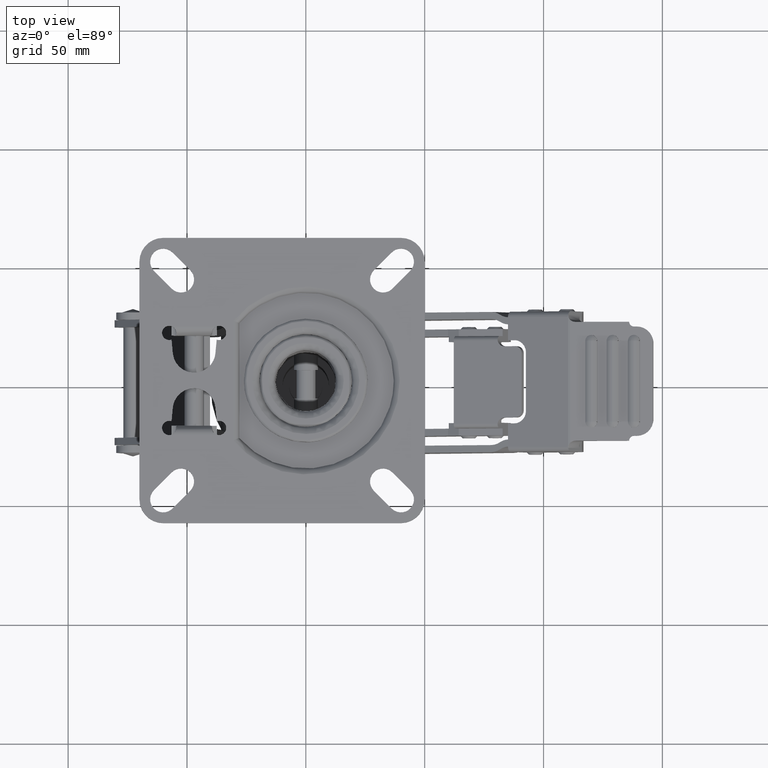
[diagram: clean part render]
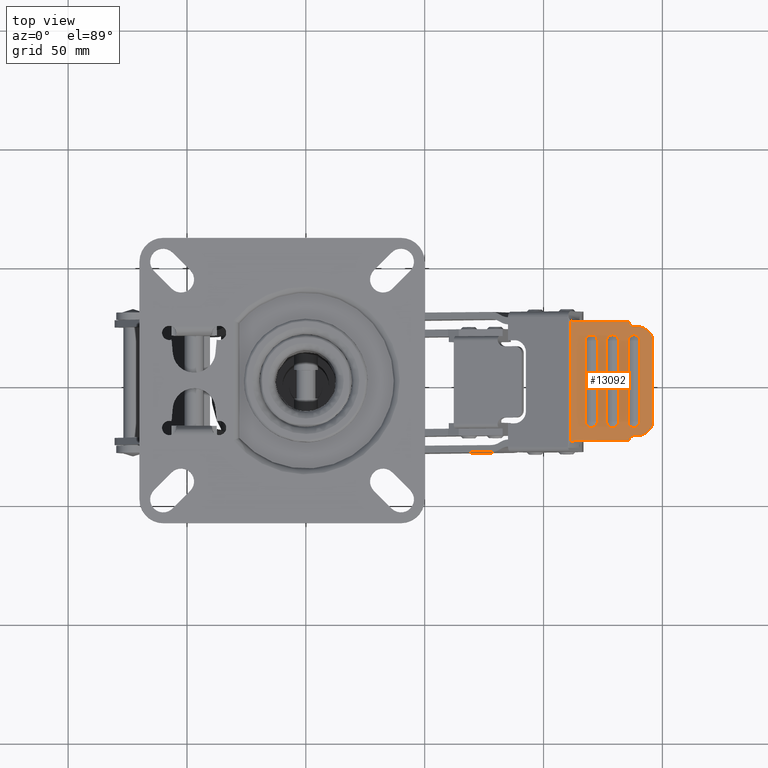
[diagram: same view with one face highlighted and labeled with its STEP entity id]
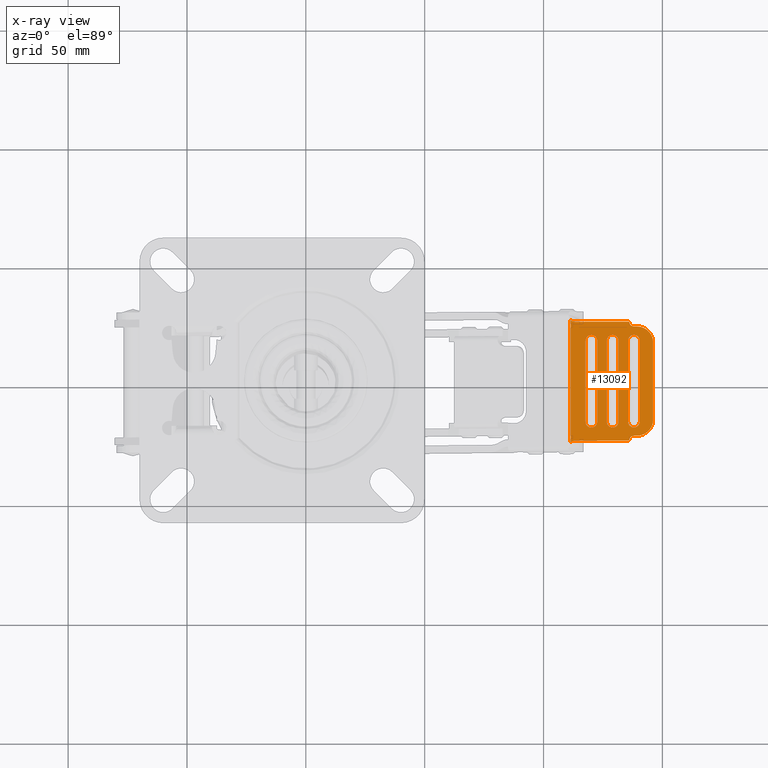
[diagram: x-ray of the same camera — body ghosted, the highlighted face saturated]
A machine part, top view. The second image highlights one B-rep face of the part: STEP entity #13092.
The next image is the same camera in x-ray: the body ghosted, the highlighted face saturated — about 0% of this face is hidden behind the body in this view.
In plain terms, the highlighted face is a freeform B-spline surface patch.
Its self-contained STEP definition (entity closure, byte-faithful):
#7690=CARTESIAN_POINT('',(136.010901999999790,-25.0,-16.472462096093999));
#7691=VERTEX_POINT('',#7690);
#7743=CARTESIAN_POINT('',(138.010901999999790,-23.0,-16.277252468842800));
#7744=VERTEX_POINT('',#7743);
#7750=CARTESIAN_POINT('',(136.010901999999790,-25.0,-16.472462096093992));
#7751=CARTESIAN_POINT('',(136.010901999999790,-23.000000000000004,-16.472462096093995));
#7752=CARTESIAN_POINT('',(138.010901999999790,-23.0,-16.277252468842800));
#7760=(BOUNDED_CURVE()B_SPLINE_CURVE(2,(#7750,#7751,#7752),.UNSPECIFIED.,.F.,.U.)CURVE()GEOMETRIC_REPRESENTATION_ITEM()QUASI_UNIFORM_CURVE()RATIONAL_B_SPLINE_CURVE((1.0,0.707106781186547,1.0))REPRESENTATION_ITEM(''));
#7761=EDGE_CURVE('',#7691,#7744,#7760,.T.);
#7779=CARTESIAN_POINT('',(139.207310000000010,-23.0,-16.160477288982651));
#7780=VERTEX_POINT('',#7779);
#7786=CARTESIAN_POINT('',(138.010901999999790,-23.0,-16.277252468842800));
#7787=CARTESIAN_POINT('',(139.207310000000010,-23.0,-16.160477288982651));
#7788=QUASI_UNIFORM_CURVE('',1,(#7786,#7787),.UNSPECIFIED.,.F.,.U.);
#7789=EDGE_CURVE('',#7744,#7780,#7788,.T.);
#7808=CARTESIAN_POINT('',(145.983887144168390,-17.754423611654449,-15.499050739806600));
#7809=VERTEX_POINT('',#7808);
#7810=CARTESIAN_POINT('',(145.983887144168700,-17.754423611654449,-15.499050739806551));
#7811=CARTESIAN_POINT('',(144.625832350921120,-22.999999999999996,-15.631603424794832));
#7812=CARTESIAN_POINT('',(139.207310000000010,-23.0,-16.160477288982602));
#7820=(BOUNDED_CURVE()B_SPLINE_CURVE(2,(#7810,#7811,#7812),.UNSPECIFIED.,.F.,.U.)CURVE()GEOMETRIC_REPRESENTATION_ITEM()QUASI_UNIFORM_CURVE()RATIONAL_B_SPLINE_CURVE((1.0,0.790769228195580,1.0))REPRESENTATION_ITEM(''));
#7821=EDGE_CURVE('',#7809,#7780,#7820,.T.);
#7864=CARTESIAN_POINT('',(139.207310000000010,23.0,-16.160477288982602));
#7865=VERTEX_POINT('',#7864);
#7878=CARTESIAN_POINT('',(138.010901999999790,23.0,-16.277252468842750));
#7879=VERTEX_POINT('',#7878);
#7885=CARTESIAN_POINT('',(139.207310000000010,23.0,-16.160477288982602));
#7886=CARTESIAN_POINT('',(138.010901999999790,23.0,-16.277252468842750));
#7887=QUASI_UNIFORM_CURVE('',1,(#7885,#7886),.UNSPECIFIED.,.F.,.U.);
#7888=EDGE_CURVE('',#7865,#7879,#7887,.T.);
#7907=CARTESIAN_POINT('',(145.983887144168390,17.754423611655000,-15.499050739806600));
#7908=VERTEX_POINT('',#7907);
#7909=CARTESIAN_POINT('',(139.207310000000010,23.0,-16.160477288982602));
#7910=CARTESIAN_POINT('',(144.625832350920090,23.000000000000007,-15.631603424794930));
#7911=CARTESIAN_POINT('',(145.983887144168390,17.754423611655000,-15.499050739806600));
#7919=(BOUNDED_CURVE()B_SPLINE_CURVE(2,(#7909,#7910,#7911),.UNSPECIFIED.,.F.,.U.)CURVE()GEOMETRIC_REPRESENTATION_ITEM()QUASI_UNIFORM_CURVE()RATIONAL_B_SPLINE_CURVE((1.0,0.790769228195632,1.0))REPRESENTATION_ITEM(''));
#7920=EDGE_CURVE('',#7865,#7908,#7919,.T.);
#8011=CARTESIAN_POINT('',(136.010901999999790,25.0,-16.472462096093999));
#8012=VERTEX_POINT('',#8011);
#8018=CARTESIAN_POINT('',(138.010901999999790,23.0,-16.277252468842800));
#8019=CARTESIAN_POINT('',(137.182474875253630,23.0,-16.358110943956042));
#8020=CARTESIAN_POINT('',(136.596688437626710,23.585786437626901,-16.415286520025010));
#8021=CARTESIAN_POINT('',(136.010901999999850,24.171572875253808,-16.472462096093992));
#8022=CARTESIAN_POINT('',(136.010901999999790,25.0,-16.472462096093992));
#8030=(BOUNDED_CURVE()B_SPLINE_CURVE(2,(#8018,#8019,#8020,#8021,#8022),.UNSPECIFIED.,.F.,.U.)B_SPLINE_CURVE_WITH_KNOTS((3,2,3),(0.0,0.500000000000000,1.0),.UNSPECIFIED.)CURVE()GEOMETRIC_REPRESENTATION_ITEM()RATIONAL_B_SPLINE_CURVE((1.0,0.923879532511294,1.0,0.923879532511294,1.0))REPRESENTATION_ITEM(''));
#8031=EDGE_CURVE('',#7879,#8012,#8030,.T.);
#8499=CARTESIAN_POINT('',(138.052562302452200,19.487663391086102,-16.273186222786361));
#8500=VERTEX_POINT('',#8499);
#8501=CARTESIAN_POINT('',(140.510086728293000,16.926503163803250,-16.033320009213149));
#8502=VERTEX_POINT('',#8501);
#8503=CARTESIAN_POINT('',(138.052562302452200,19.487663391086102,-16.273186222786361));
#8504=CARTESIAN_POINT('',(138.442557885283490,19.483579292641870,-16.235120776608799));
#8505=CARTESIAN_POINT('',(138.994123872563590,19.342611239104510,-16.181285281217210));
#8506=CARTESIAN_POINT('',(139.683580616891190,18.887587872285749,-16.113990984182269));
#8507=CARTESIAN_POINT('',(140.099305043915710,18.420800957438111,-16.073414278961550));
#8508=CARTESIAN_POINT('',(140.437072109185690,17.732348629066589,-16.040446587504920));
#8509=CARTESIAN_POINT('',(140.517829343752200,17.235668685510280,-16.032564292674870));
#8510=CARTESIAN_POINT('',(140.510086728293000,16.926503163803250,-16.033320009213149));
#8511=B_SPLINE_CURVE_WITH_KNOTS('',3,(#8503,#8504,#8505,#8506,#8507,#8508,#8509,#8510),.UNSPECIFIED.,.F.,.U.,(4,1,1,1,1,4),(0.000000564917675,1.175101842134310,1.669906509900008,2.473870782001163,3.030508140870134,3.958207701490773),.UNSPECIFIED.);
#8512=EDGE_CURVE('',#8500,#8502,#8511,.T.);
#8514=CARTESIAN_POINT('',(135.533637261580990,16.987428999999899,-16.519045431934501));
#8515=VERTEX_POINT('',#8514);
#8516=CARTESIAN_POINT('',(135.533637261580990,16.987428999999899,-16.519045431934501));
#8517=CARTESIAN_POINT('',(135.533352211769310,17.296704456674519,-16.519073254168951));
#8518=CARTESIAN_POINT('',(135.626215309124800,17.791243071524669,-16.510009368859809));
#8519=CARTESIAN_POINT('',(135.942302905465790,18.397597365426741,-16.479157697930731));
#8520=CARTESIAN_POINT('',(136.396875410409510,18.935163956194231,-16.434789233306990));
#8521=CARTESIAN_POINT('',(137.107432269946290,19.379211292414411,-16.365435463461800));
#8522=CARTESIAN_POINT('',(137.744800805828790,19.491681276145489,-16.303225226305759));
#8523=CARTESIAN_POINT('',(138.052562302452200,19.487663391086102,-16.273186222786361));
#8524=B_SPLINE_CURVE_WITH_KNOTS('',3,(#8516,#8517,#8518,#8519,#8520,#8521,#8522,#8523),.UNSPECIFIED.,.F.,.U.,(4,1,1,1,1,4),(0.000000564945659,0.927704733621519,1.484344857681237,2.040879204135153,3.030523194228511,3.958227362906388),.UNSPECIFIED.);
#8525=EDGE_CURVE('',#8515,#8500,#8524,.T.);
#8646=CARTESIAN_POINT('',(129.094838153745290,19.487663391794769,-17.147503218830401));
#8647=VERTEX_POINT('',#8646);
#8648=CARTESIAN_POINT('',(131.552362583051010,16.926503169149601,-16.907637004927700));
#8649=VERTEX_POINT('',#8648);
#8650=CARTESIAN_POINT('',(129.094838153745290,19.487663391794769,-17.147503218830401));
#8651=CARTESIAN_POINT('',(129.484787868854310,19.483574473774532,-17.109442249564250));
#8652=CARTESIAN_POINT('',(130.118276216857200,19.321786795848261,-17.047610737423980));
#8653=CARTESIAN_POINT('',(130.788374396891810,18.829984932902001,-16.982205929451069));
#8654=CARTESIAN_POINT('',(131.230142323345690,18.281853334621040,-16.939087253323681));
#8655=CARTESIAN_POINT('',(131.502496316939610,17.649473849846942,-16.912504192538410));
#8656=CARTESIAN_POINT('',(131.557927329025400,17.153196706364881,-16.907093858934250));
#8657=CARTESIAN_POINT('',(131.552362583051010,16.926503169149601,-16.907637004927700));
#8658=B_SPLINE_CURVE_WITH_KNOTS('',3,(#8650,#8651,#8652,#8653,#8654,#8655,#8656,#8657),.UNSPECIFIED.,.F.,.U.,(4,1,1,1,1,4),(0.000000564923513,1.175101841658278,1.917339198239790,2.473870780995842,3.277902119914029,3.958207699878586),.UNSPECIFIED.);
#8659=EDGE_CURVE('',#8647,#8649,#8658,.T.);
#8661=CARTESIAN_POINT('',(126.575913114862200,16.987428999999899,-17.393362427782250));
#8662=VERTEX_POINT('',#8661);
#8663=CARTESIAN_POINT('',(126.575913114862200,16.987428999999899,-17.393362427782250));
#8664=CARTESIAN_POINT('',(126.575229112326000,17.379271111504281,-17.393429189722749));
#8665=CARTESIAN_POINT('',(126.718637502320800,17.976435414363060,-17.379431840545671));
#8666=CARTESIAN_POINT('',(127.146843244778790,18.613422512948080,-17.337636898860762));
#8667=CARTESIAN_POINT('',(127.627408837616100,19.067712367635259,-17.290731383738059));
#8668=CARTESIAN_POINT('',(128.273119550296600,19.407431311384059,-17.227706909971410));
#8669=CARTESIAN_POINT('',(128.828124425481290,19.491055623970269,-17.173535762569092));
#8670=CARTESIAN_POINT('',(129.094838153745290,19.487663391794769,-17.147503218830401));
#8671=B_SPLINE_CURVE_WITH_KNOTS('',3,(#8663,#8664,#8665,#8666,#8667,#8668,#8669,#8670),.UNSPECIFIED.,.F.,.U.,(4,1,1,1,1,4),(0.000000564950851,1.175107678803641,1.793598329869497,2.288313121700720,3.154221076973745,3.958227361294228),.UNSPECIFIED.);
#8672=EDGE_CURVE('',#8662,#8647,#8671,.T.);
#8792=CARTESIAN_POINT('',(120.137114005038300,19.487663392503439,-18.021820214874431));
#8793=VERTEX_POINT('',#8792);
#8794=CARTESIAN_POINT('',(122.594638437808000,16.926503174496599,-17.781954000633601));
#8795=VERTEX_POINT('',#8794);
#8796=CARTESIAN_POINT('',(120.137114005038300,19.487663392503439,-18.021820214874431));
#8797=CARTESIAN_POINT('',(120.485986192563400,19.483873573907680,-17.987768610032390));
#8798=CARTESIAN_POINT('',(121.038067649222500,19.357583915267650,-17.933882802349700));
#8799=CARTESIAN_POINT('',(121.652513098079000,18.973510068722749,-17.873909968831342));
#8800=CARTESIAN_POINT('',(122.092758537905790,18.536941173282671,-17.830939894727521));
#8801=CARTESIAN_POINT('',(122.490418021685000,17.877328957238550,-17.792126414926589));
#8802=CARTESIAN_POINT('',(122.603609207972000,17.276924793050100,-17.781078410284049));
#8803=CARTESIAN_POINT('',(122.594638437808000,16.926503174496599,-17.781954000633601));
#8804=B_SPLINE_CURVE_WITH_KNOTS('',3,(#8796,#8797,#8798,#8799,#8800,#8801,#8802,#8803),.UNSPECIFIED.,.F.,.U.,(4,1,1,1,1,4),(0.000000564907121,1.051404571719722,1.669906508532635,2.164618843429540,2.906803691452613,3.958207698266045),.UNSPECIFIED.);
#8805=EDGE_CURVE('',#8793,#8795,#8804,.T.);
#8807=CARTESIAN_POINT('',(117.618188968143600,16.987428999999899,-18.267679423630149));
#8808=VERTEX_POINT('',#8807);
#8809=CARTESIAN_POINT('',(117.618188968143600,16.987428999999899,-18.267679423630149));
#8810=CARTESIAN_POINT('',(117.618089001990300,17.255416557029751,-18.267689180808279));
#8811=CARTESIAN_POINT('',(117.714597753428510,17.853308410267459,-18.258269462111969));
#8812=CARTESIAN_POINT('',(118.098642287560390,18.528486963423049,-18.220784866935560));
#8813=CARTESIAN_POINT('',(118.609728910941500,19.010743715664969,-18.170900352315350));
#8814=CARTESIAN_POINT('',(119.233269948014000,19.379688051012920,-18.110039745605459));
#8815=CARTESIAN_POINT('',(119.788249972077490,19.492415615523470,-18.055871023791561));
#8816=CARTESIAN_POINT('',(120.137114005038300,19.487663392503439,-18.021820214874431));
#8817=B_SPLINE_CURVE_WITH_KNOTS('',3,(#8809,#8810,#8811,#8812,#8813,#8814,#8815,#8816),.UNSPECIFIED.,.F.,.U.,(4,1,1,1,1,4),(0.000000564933216,0.804006848927419,1.793598329132230,2.288313120764774,2.906818130231264,3.958227359681584),.UNSPECIFIED.);
#8818=EDGE_CURVE('',#8808,#8793,#8817,.T.);
#9029=CARTESIAN_POINT('',(111.369278475967410,25.705984580092998,-18.877603167589250));
#9030=VERTEX_POINT('',#9029);
#9038=CARTESIAN_POINT('',(113.444490027692000,25.0,-18.675052530849499));
#9039=VERTEX_POINT('',#9038);
#9040=CARTESIAN_POINT('',(111.369278475967410,25.705984580093080,-18.877603167589260));
#9041=CARTESIAN_POINT('',(112.268514107454990,25.0,-18.789833441372416));
#9042=CARTESIAN_POINT('',(113.444490027692000,25.0,-18.675052530849499));
#9050=(BOUNDED_CURVE()B_SPLINE_CURVE(2,(#9040,#9041,#9042),.UNSPECIFIED.,.F.,.U.)CURVE()GEOMETRIC_REPRESENTATION_ITEM()QUASI_UNIFORM_CURVE()RATIONAL_B_SPLINE_CURVE((1.0,0.939327367491130,1.0))REPRESENTATION_ITEM(''));
#9051=EDGE_CURVE('',#9030,#9039,#9050,.T.);
#9269=CARTESIAN_POINT('',(113.444490027692000,25.0,-18.675052530849499));
#9270=CARTESIAN_POINT('',(136.010901999999790,25.0,-16.472462096093999));
#9271=QUASI_UNIFORM_CURVE('',1,(#9269,#9270),.UNSPECIFIED.,.F.,.U.);
#9272=EDGE_CURVE('',#9039,#8012,#9271,.T.);
#10606=CARTESIAN_POINT('',(140.510086728293000,-16.926503163803250,-16.033320009213149));
#10607=VERTEX_POINT('',#10606);
#10608=CARTESIAN_POINT('',(140.510086728293000,16.926503163803250,-16.033320009213149));
#10609=CARTESIAN_POINT('',(140.510086728293000,-16.926503163803250,-16.033320009213149));
#10610=QUASI_UNIFORM_CURVE('',1,(#10608,#10609),.UNSPECIFIED.,.F.,.U.);
#10611=EDGE_CURVE('',#8502,#10607,#10610,.T.);
#10636=CARTESIAN_POINT('',(135.533637261580990,-16.987428999999899,-16.519045431934501));
#10637=VERTEX_POINT('',#10636);
#10638=CARTESIAN_POINT('',(135.533637261580990,-16.987428999999899,-16.519045431934501));
#10639=CARTESIAN_POINT('',(135.533637261580990,16.987428999999899,-16.519045431934501));
#10640=QUASI_UNIFORM_CURVE('',1,(#10638,#10639),.UNSPECIFIED.,.F.,.U.);
#10641=EDGE_CURVE('',#10637,#8515,#10640,.T.);
#10733=CARTESIAN_POINT('',(131.552362583051010,-16.926503169149601,-16.907637004927700));
#10734=VERTEX_POINT('',#10733);
#10735=CARTESIAN_POINT('',(131.552362583051010,16.926503169149601,-16.907637004927700));
#10736=CARTESIAN_POINT('',(131.552362583051010,-16.926503169149601,-16.907637004927700));
#10737=QUASI_UNIFORM_CURVE('',1,(#10735,#10736),.UNSPECIFIED.,.F.,.U.);
#10738=EDGE_CURVE('',#8649,#10734,#10737,.T.);
#10763=CARTESIAN_POINT('',(126.575913114862200,-16.987428999999899,-17.393362427782250));
#10764=VERTEX_POINT('',#10763);
#10765=CARTESIAN_POINT('',(126.575913114862200,-16.987428999999899,-17.393362427782250));
#10766=CARTESIAN_POINT('',(126.575913114862200,16.987428999999899,-17.393362427782250));
#10767=QUASI_UNIFORM_CURVE('',1,(#10765,#10766),.UNSPECIFIED.,.F.,.U.);
#10768=EDGE_CURVE('',#10764,#8662,#10767,.T.);
#10857=CARTESIAN_POINT('',(138.052562302452200,-19.487663391086102,-16.273186222786361));
#10858=VERTEX_POINT('',#10857);
#10859=CARTESIAN_POINT('',(135.533637261580990,-16.987428999999899,-16.519045431934501));
#10860=CARTESIAN_POINT('',(135.533352211769310,-17.296704456674519,-16.519073254168951));
#10861=CARTESIAN_POINT('',(135.626215309124800,-17.791243071524669,-16.510009368859809));
#10862=CARTESIAN_POINT('',(135.942302905465790,-18.397597365426741,-16.479157697930731));
#10863=CARTESIAN_POINT('',(136.396875410409510,-18.935163956194231,-16.434789233306990));
#10864=CARTESIAN_POINT('',(137.107432269946290,-19.379211292414411,-16.365435463461800));
#10865=CARTESIAN_POINT('',(137.744800805828790,-19.491681276145489,-16.303225226305759));
#10866=CARTESIAN_POINT('',(138.052562302452200,-19.487663391086102,-16.273186222786361));
#10867=B_SPLINE_CURVE_WITH_KNOTS('',3,(#10859,#10860,#10861,#10862,#10863,#10864,#10865,#10866),.UNSPECIFIED.,.F.,.U.,(4,1,1,1,1,4),(0.000000564945659,0.927704733621519,1.484344857681237,2.040879204135153,3.030523194228511,3.958227362906388),.UNSPECIFIED.);
#10868=EDGE_CURVE('',#10637,#10858,#10867,.T.);
#10870=CARTESIAN_POINT('',(138.052562302452200,-19.487663391086102,-16.273186222786361));
#10871=CARTESIAN_POINT('',(138.442557885283490,-19.483579292641870,-16.235120776608799));
#10872=CARTESIAN_POINT('',(138.994123872563590,-19.342611239104510,-16.181285281217210));
#10873=CARTESIAN_POINT('',(139.683580616891190,-18.887587872285749,-16.113990984182269));
#10874=CARTESIAN_POINT('',(140.099305043915710,-18.420800957438111,-16.073414278961550));
#10875=CARTESIAN_POINT('',(140.437072109185690,-17.732348629066589,-16.040446587504920));
#10876=CARTESIAN_POINT('',(140.517829343752200,-17.235668685510280,-16.032564292674870));
#10877=CARTESIAN_POINT('',(140.510086728293000,-16.926503163803250,-16.033320009213149));
#10878=B_SPLINE_CURVE_WITH_KNOTS('',3,(#10870,#10871,#10872,#10873,#10874,#10875,#10876,#10877),.UNSPECIFIED.,.F.,.U.,(4,1,1,1,1,4),(0.000000564917675,1.175101842134310,1.669906509900008,2.473870782001163,3.030508140870134,3.958207701490773),.UNSPECIFIED.);
#10879=EDGE_CURVE('',#10858,#10607,#10878,.T.);
#10965=CARTESIAN_POINT('',(129.094838153745290,-19.487663391794769,-17.147503218830401));
#10966=VERTEX_POINT('',#10965);
#10967=CARTESIAN_POINT('',(126.575913114862200,-16.987428999999899,-17.393362427782250));
#10968=CARTESIAN_POINT('',(126.575229112326000,-17.379271111504281,-17.393429189722749));
#10969=CARTESIAN_POINT('',(126.718637502320800,-17.976435414363060,-17.379431840545671));
#10970=CARTESIAN_POINT('',(127.146843244778790,-18.613422512948080,-17.337636898860762));
#10971=CARTESIAN_POINT('',(127.627408837616100,-19.067712367635259,-17.290731383738059));
#10972=CARTESIAN_POINT('',(128.273119550296600,-19.407431311384059,-17.227706909971410));
#10973=CARTESIAN_POINT('',(128.828124425481290,-19.491055623970269,-17.173535762569092));
#10974=CARTESIAN_POINT('',(129.094838153745290,-19.487663391794769,-17.147503218830401));
#10975=B_SPLINE_CURVE_WITH_KNOTS('',3,(#10967,#10968,#10969,#10970,#10971,#10972,#10973,#10974),.UNSPECIFIED.,.F.,.U.,(4,1,1,1,1,4),(0.000000564950851,1.175107678803641,1.793598329869497,2.288313121700720,3.154221076973745,3.958227361294228),.UNSPECIFIED.);
#10976=EDGE_CURVE('',#10764,#10966,#10975,.T.);
#10978=CARTESIAN_POINT('',(129.094838153745290,-19.487663391794769,-17.147503218830401));
#10979=CARTESIAN_POINT('',(129.484787868854310,-19.483574473774532,-17.109442249564250));
#10980=CARTESIAN_POINT('',(130.118276216857200,-19.321786795848261,-17.047610737423980));
#10981=CARTESIAN_POINT('',(130.788374396891810,-18.829984932902001,-16.982205929451069));
#10982=CARTESIAN_POINT('',(131.230142323345690,-18.281853334621040,-16.939087253323681));
#10983=CARTESIAN_POINT('',(131.502496316939610,-17.649473849846942,-16.912504192538410));
#10984=CARTESIAN_POINT('',(131.557927329025400,-17.153196706364881,-16.907093858934250));
#10985=CARTESIAN_POINT('',(131.552362583051010,-16.926503169149601,-16.907637004927700));
#10986=B_SPLINE_CURVE_WITH_KNOTS('',3,(#10978,#10979,#10980,#10981,#10982,#10983,#10984,#10985),.UNSPECIFIED.,.F.,.U.,(4,1,1,1,1,4),(0.000000564923513,1.175101841658278,1.917339198239790,2.473870780995842,3.277902119914029,3.958207699878586),.UNSPECIFIED.);
#10987=EDGE_CURVE('',#10966,#10734,#10986,.T.);
#11075=CARTESIAN_POINT('',(122.594638437808000,-16.926503174496599,-17.781954000633601));
#11076=VERTEX_POINT('',#11075);
#11084=CARTESIAN_POINT('',(122.594638437808000,16.926503174496599,-17.781954000633601));
#11085=CARTESIAN_POINT('',(122.594638437808000,-16.926503174496599,-17.781954000633601));
#11086=QUASI_UNIFORM_CURVE('',1,(#11084,#11085),.UNSPECIFIED.,.F.,.U.);
#11087=EDGE_CURVE('',#8795,#11076,#11086,.T.);
#11105=CARTESIAN_POINT('',(117.618188968143600,-16.987428999999899,-18.267679423630149));
#11106=VERTEX_POINT('',#11105);
#11107=CARTESIAN_POINT('',(117.618188968143600,-16.987428999999899,-18.267679423630149));
#11108=CARTESIAN_POINT('',(117.618188968143600,16.987428999999899,-18.267679423630149));
#11109=QUASI_UNIFORM_CURVE('',1,(#11107,#11108),.UNSPECIFIED.,.F.,.U.);
#11110=EDGE_CURVE('',#11106,#8808,#11109,.T.);
#11199=CARTESIAN_POINT('',(120.137114005038300,-19.487663392503439,-18.021820214874431));
#11200=VERTEX_POINT('',#11199);
#11201=CARTESIAN_POINT('',(117.618188968143600,-16.987428999999899,-18.267679423630149));
#11202=CARTESIAN_POINT('',(117.618089001990300,-17.255416557029751,-18.267689180808279));
#11203=CARTESIAN_POINT('',(117.714597753428510,-17.853308410267459,-18.258269462111969));
#11204=CARTESIAN_POINT('',(118.098642287560390,-18.528486963423049,-18.220784866935560));
#11205=CARTESIAN_POINT('',(118.609728910941500,-19.010743715664969,-18.170900352315350));
#11206=CARTESIAN_POINT('',(119.233269948014000,-19.379688051012920,-18.110039745605459));
#11207=CARTESIAN_POINT('',(119.788249972077490,-19.492415615523470,-18.055871023791561));
#11208=CARTESIAN_POINT('',(120.137114005038300,-19.487663392503439,-18.021820214874431));
#11209=B_SPLINE_CURVE_WITH_KNOTS('',3,(#11201,#11202,#11203,#11204,#11205,#11206,#11207,#11208),.UNSPECIFIED.,.F.,.U.,(4,1,1,1,1,4),(0.000000564933216,0.804006848927419,1.793598329132230,2.288313120764774,2.906818130231264,3.958227359681584),.UNSPECIFIED.);
#11210=EDGE_CURVE('',#11106,#11200,#11209,.T.);
#11212=CARTESIAN_POINT('',(120.137114005038300,-19.487663392503439,-18.021820214874431));
#11213=CARTESIAN_POINT('',(120.485986192563400,-19.483873573907680,-17.987768610032390));
#11214=CARTESIAN_POINT('',(121.038067649222500,-19.357583915267650,-17.933882802349700));
#11215=CARTESIAN_POINT('',(121.652513098079000,-18.973510068722749,-17.873909968831342));
#11216=CARTESIAN_POINT('',(122.092758537905790,-18.536941173282671,-17.830939894727521));
#11217=CARTESIAN_POINT('',(122.490418021685000,-17.877328957238550,-17.792126414926589));
#11218=CARTESIAN_POINT('',(122.603609207972000,-17.276924793050100,-17.781078410284049));
#11219=CARTESIAN_POINT('',(122.594638437808000,-16.926503174496599,-17.781954000633601));
#11220=B_SPLINE_CURVE_WITH_KNOTS('',3,(#11212,#11213,#11214,#11215,#11216,#11217,#11218,#11219),.UNSPECIFIED.,.F.,.U.,(4,1,1,1,1,4),(0.000000564907121,1.051404571719722,1.669906508532635,2.164618843429540,2.906803691452613,3.958207698266045),.UNSPECIFIED.);
#11221=EDGE_CURVE('',#11200,#11076,#11220,.T.);
#11324=CARTESIAN_POINT('',(111.369278475967410,-25.705984580092998,-18.877603167589250));
#11325=VERTEX_POINT('',#11324);
#11326=CARTESIAN_POINT('',(111.369278475967410,25.705984580092998,-18.877603167589250));
#11327=CARTESIAN_POINT('',(111.369278475967410,-25.705984580092998,-18.877603167589250));
#11328=QUASI_UNIFORM_CURVE('',1,(#11326,#11327),.UNSPECIFIED.,.F.,.U.);
#11329=EDGE_CURVE('',#9030,#11325,#11328,.T.);
#11527=CARTESIAN_POINT('',(113.444490027692000,-25.0,-18.675052530849499));
#11528=VERTEX_POINT('',#11527);
#11534=CARTESIAN_POINT('',(111.369278475967410,-25.705984580093080,-18.877603167589260));
#11535=CARTESIAN_POINT('',(112.268514107454990,-25.0,-18.789833441372416));
#11536=CARTESIAN_POINT('',(113.444490027692000,-25.0,-18.675052530849499));
#11544=(BOUNDED_CURVE()B_SPLINE_CURVE(2,(#11534,#11535,#11536),.UNSPECIFIED.,.F.,.U.)CURVE()GEOMETRIC_REPRESENTATION_ITEM()QUASI_UNIFORM_CURVE()RATIONAL_B_SPLINE_CURVE((1.0,0.939327367491130,1.0))REPRESENTATION_ITEM(''));
#11545=EDGE_CURVE('',#11325,#11528,#11544,.T.);
#11690=CARTESIAN_POINT('',(113.444490027692000,-25.0,-18.675052530849499));
#11691=CARTESIAN_POINT('',(136.010901999999790,-25.0,-16.472462096093999));
#11692=QUASI_UNIFORM_CURVE('',1,(#11690,#11691),.UNSPECIFIED.,.F.,.U.);
#11693=EDGE_CURVE('',#11528,#7691,#11692,.T.);
#13039=CARTESIAN_POINT('',(145.983887144168390,17.754423611655000,-15.499050739806600));
#13040=CARTESIAN_POINT('',(145.983887144168390,-17.754423611654449,-15.499050739806600));
#13041=QUASI_UNIFORM_CURVE('',1,(#13039,#13040),.UNSPECIFIED.,.F.,.U.);
#13042=EDGE_CURVE('',#7908,#7809,#13041,.T.);
#13049=CARTESIAN_POINT('',(147.712886455118000,-28.274011857379129,-15.330292084302490));
#13050=CARTESIAN_POINT('',(109.640277927102900,-28.274011857379129,-19.046361943919631));
#13051=CARTESIAN_POINT('',(147.712886455118000,28.274013696014428,-15.330292084302490));
#13052=CARTESIAN_POINT('',(109.640277927102900,28.274013696014428,-19.046361943919631));
#13053=B_SPLINE_SURFACE_WITH_KNOTS('',1,1,((#13049,#13051),(#13050,#13052)),.UNSPECIFIED.,.F.,.F.,.U.,(2,2),(2,2),(0.0,38.253531802031638),(0.0,56.548025553393558),.UNSPECIFIED.);
#13054=ORIENTED_EDGE('',*,*,#7888,.T.);
#13055=ORIENTED_EDGE('',*,*,#8031,.T.);
#13056=ORIENTED_EDGE('',*,*,#9272,.F.);
#13057=ORIENTED_EDGE('',*,*,#9051,.F.);
#13058=ORIENTED_EDGE('',*,*,#11329,.T.);
#13059=ORIENTED_EDGE('',*,*,#11545,.T.);
#13060=ORIENTED_EDGE('',*,*,#11693,.T.);
#13061=ORIENTED_EDGE('',*,*,#7761,.T.);
#13062=ORIENTED_EDGE('',*,*,#7789,.T.);
#13063=ORIENTED_EDGE('',*,*,#7821,.F.);
#13064=ORIENTED_EDGE('',*,*,#13042,.F.);
#13065=ORIENTED_EDGE('',*,*,#7920,.F.);
#13066=EDGE_LOOP('',(#13054,#13055,#13056,#13057,#13058,#13059,#13060,#13061,#13062,#13063,#13064,#13065));
#13067=FACE_OUTER_BOUND('',#13066,.T.);
#13068=ORIENTED_EDGE('',*,*,#10768,.T.);
#13069=ORIENTED_EDGE('',*,*,#8672,.T.);
#13070=ORIENTED_EDGE('',*,*,#8659,.T.);
#13071=ORIENTED_EDGE('',*,*,#10738,.T.);
#13072=ORIENTED_EDGE('',*,*,#10987,.F.);
#13073=ORIENTED_EDGE('',*,*,#10976,.F.);
#13074=EDGE_LOOP('',(#13068,#13069,#13070,#13071,#13072,#13073));
#13075=FACE_BOUND('',#13074,.T.);
#13076=ORIENTED_EDGE('',*,*,#10641,.T.);
#13077=ORIENTED_EDGE('',*,*,#8525,.T.);
#13078=ORIENTED_EDGE('',*,*,#8512,.T.);
#13079=ORIENTED_EDGE('',*,*,#10611,.T.);
#13080=ORIENTED_EDGE('',*,*,#10879,.F.);
#13081=ORIENTED_EDGE('',*,*,#10868,.F.);
#13082=EDGE_LOOP('',(#13076,#13077,#13078,#13079,#13080,#13081));
#13083=FACE_BOUND('',#13082,.T.);
#13084=ORIENTED_EDGE('',*,*,#11087,.T.);
#13085=ORIENTED_EDGE('',*,*,#11221,.F.);
#13086=ORIENTED_EDGE('',*,*,#11210,.F.);
#13087=ORIENTED_EDGE('',*,*,#11110,.T.);
#13088=ORIENTED_EDGE('',*,*,#8818,.T.);
#13089=ORIENTED_EDGE('',*,*,#8805,.T.);
#13090=EDGE_LOOP('',(#13084,#13085,#13086,#13087,#13088,#13089));
#13091=FACE_BOUND('',#13090,.T.);
#13092=ADVANCED_FACE('',(#13067,#13075,#13083,#13091),#13053,.F.);